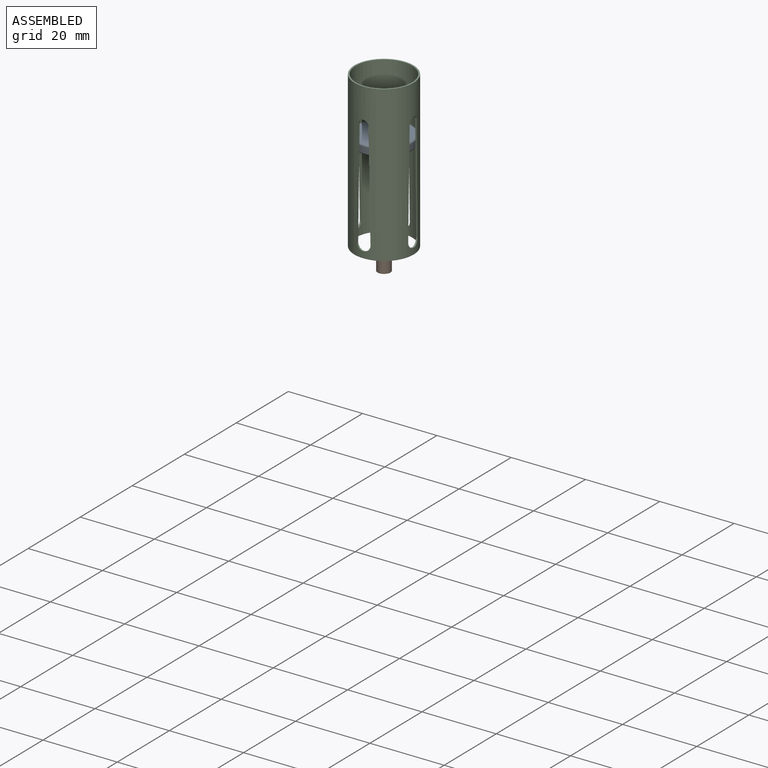
[diagram: assembled view]
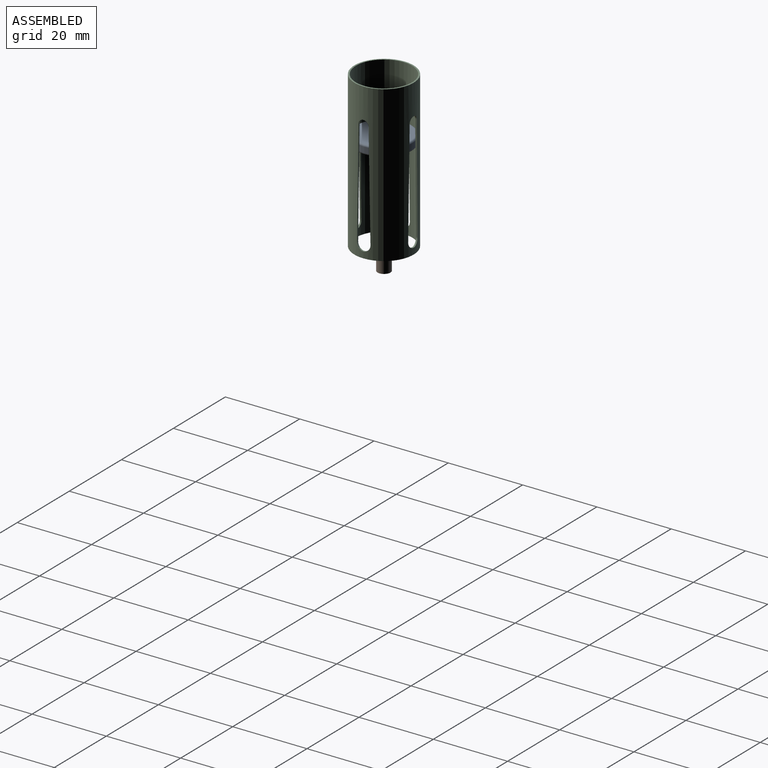
[diagram: assembled view, second angle]
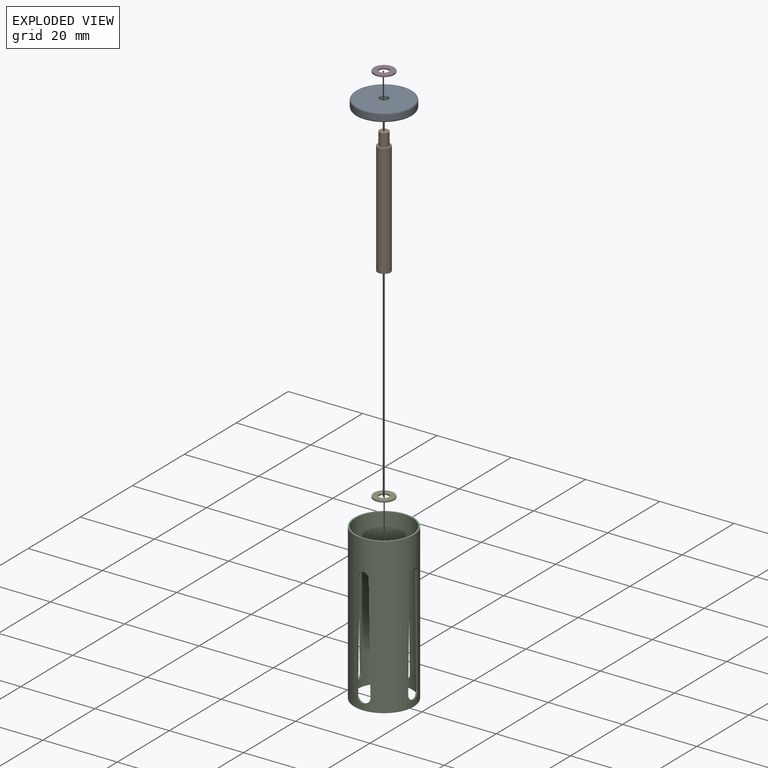
[diagram: exploded view]
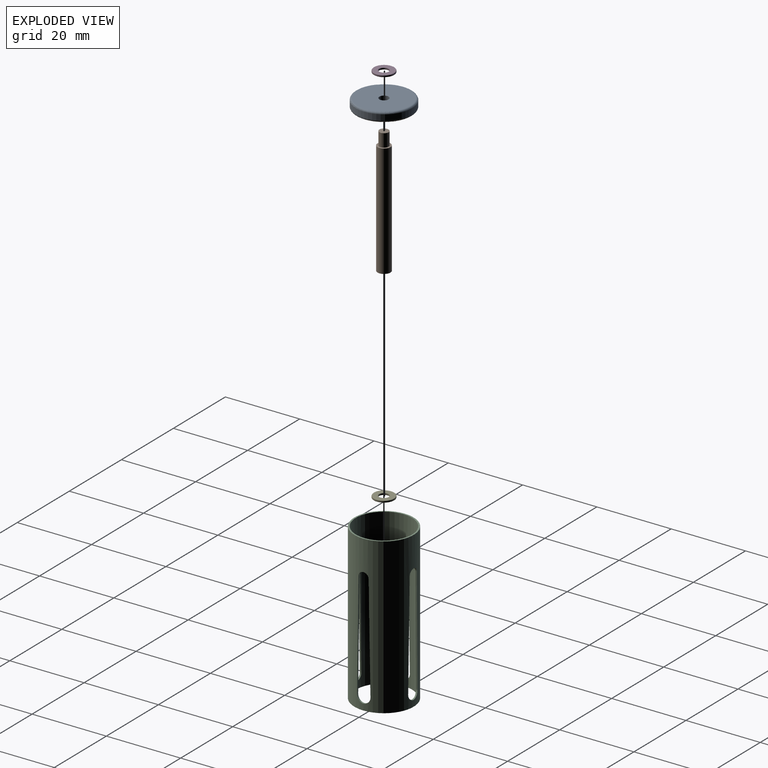
[diagram: exploded view, second angle]
ASSEMBLY  parts=5 mates=7
PART A: 6 faces, bbox 16.4x16.4x2.5 mm
  f0: cylinder r=7.56mm len=15.13mm, axis (0,0,-1), area 71.3mm2, adj f3,f4
  f1: plane 14.13x14.13mm, normal (0,0,1), area 151.9mm2, adj f4,f5
  f2: plane 14.13x14.13mm, normal (0,0,-1), area 151.9mm2, adj f3,f5
  f3: torus R=7.07mm, axis (0,0,1), area 36.4mm2, adj f0,f2
  f4: torus R=7.07mm, axis (0,0,1), area 36.4mm2, adj f0,f1
  f5: cylinder r=1.25mm len=2.5mm, axis (0,0,1), area 19.6mm2, adj f1,f2
PART B: 5 faces, bbox 3.5x3.5x34 mm
  f0: cylinder r=1.75mm len=30.5mm, axis (0,0,-1), area 335.4mm2, adj f1,f2
  f1: plane 3.5x3.5mm, normal (0,0,1), area 4.7mm2, adj f0,f3
  f2: plane 3.5x3.5mm, normal (0,0,-1), area 9.6mm2, adj f0
  f3: cylinder r=1.25mm len=3.5mm, axis (0,0,-1), area 27.5mm2, adj f1,f4
  f4: plane 2.5x2.5mm, normal (0,0,1), area 4.9mm2, adj f3
PART C: 20 faces, bbox 16x16x41.8 mm
  f0: cylinder r=7.97mm len=41.8mm, axis (0,0,-1), area 1697.2mm2, adj f2,f3,f4,f5,f6,f7,f8,f9
  f1: cylinder r=7.58mm len=41.8mm, axis (0,0,1), area 1591.9mm2, adj f2,f3,f4,f5,f6,f7,f8,f9
  f2: plane 15.95x15.95mm, normal (0,0,1), area 19.5mm2, adj f0,f1
  f3: plane 15.95x15.95mm, normal (0,0,-1), area 19.5mm2, adj f0,f1
  f4: cylinder r=1.8mm len=3.6mm, axis (0,1,0), area 2.3mm2, adj f0,f1,f5,f7
  f5: plane 28.79x0.5mm, normal (1,0,-0.02), area 11.8mm2, adj f0,f1,f4,f6
  f6: cylinder r=1.35mm len=2.7mm, axis (0,1,0), area 1.7mm2, adj f0,f1,f5,f7
  f7: plane 28.77x0.5mm, normal (-1,0,-0.02), area 11.8mm2, adj f0,f1,f4,f6
  f8: plane 28.77x0.5mm, normal (-1,0,-0.02), area 11.8mm2, adj f0,f1,f9,f11
  f9: cylinder r=1.35mm len=2.7mm, axis (0,1,0), area 1.7mm2, adj f0,f1,f8,f10
  f10: plane 28.79x0.5mm, normal (1,0,-0.02), area 11.8mm2, adj f0,f1,f9,f11
  f11: cylinder r=1.8mm len=3.6mm, axis (0,1,0), area 2.3mm2, adj f0,f1,f8,f10
  f12: plane 28.8x0.5mm, normal (0,1,-0.02), area 11.8mm2, adj f0,f1,f13,f15
  f13: cylinder r=1.35mm len=2.7mm, axis (1,0,0), area 1.7mm2, adj f0,f1,f12,f14
  f14: plane 28.8x0.5mm, normal (0,-1,-0.02), area 11.8mm2, adj f0,f1,f13,f15
  f15: cylinder r=1.8mm len=3.6mm, axis (1,0,0), area 2.3mm2, adj f0,f1,f12,f14
  f16: cylinder r=1.8mm len=3.6mm, axis (1,0,0), area 2.3mm2, adj f0,f1,f17,f19
  f17: plane 28.8x0.5mm, normal (0,-1,-0.02), area 11.8mm2, adj f0,f1,f16,f18
  f18: cylinder r=1.35mm len=2.7mm, axis (1,0,0), area 1.7mm2, adj f0,f1,f17,f19
  f19: plane 28.8x0.5mm, normal (0,1,-0.02), area 11.8mm2, adj f0,f1,f16,f18
PART D: 8 faces, bbox 6x6x0.5 mm
  f0: cylinder r=2.75mm len=5.5mm, axis (0,0,-1), area 5.2mm2, adj f6,f7
  f1: plane 5.3x5.3mm, normal (0,0,1), area 16.1mm2, adj f5,f7
  f2: plane 5.3x5.3mm, normal (0,0,-1), area 16.1mm2, adj f4,f6
  f3: cylinder r=1.28mm len=2.55mm, axis (0,0,-1), area 2.4mm2, adj f4,f5
  f4: torus R=1.38mm, axis (0,0,1), area 1.3mm2, adj f2,f3
  f5: torus R=1.38mm, axis (0,0,1), area 1.3mm2, adj f1,f3
  f6: torus R=2.65mm, axis (0,0,1), area 2.7mm2, adj f0,f2
  f7: torus R=2.65mm, axis (0,0,1), area 2.7mm2, adj f0,f1
PART E: same geometry as D
PLACE A t=(-10.01,-0.27,28.46)mm
PLACE B t=(-10.01,-0.27,-2.54)mm
PLACE C t=(-10.01,-0.27,3.49)mm
PLACE D t=(-10.01,-0.27,30.96)mm
PLACE E t=(-10.01,-0.27,27.96)mm
MATE fastened A.f0 <-> E.f0  axis (0,0,-1) through (-10.01,-0.27,28.46)mm
MATE cylindrical C.f1 <-> A.f0  axis (0,0,1) through (-10.01,-0.27,24.39)mm
MATE fastened D.f0 <-> A.f0  axis (0,0,-1) through (-10.01,-0.27,30.96)mm
MATE cylindrical A.f5 <-> B.f3  axis (0,0,1) through (-10.01,-0.27,30.96)mm
MATE fastened E.f0 <-> B.f0  axis (0,0,-1) through (-10.01,-0.27,27.96)mm
MATE cylindrical E.f3 <-> B.f0  axis (0,0,1) through (-10.01,-0.27,28.36)mm
MATE cylindrical D.f3 <-> B.f3  axis (0,0,1) through (-10.01,-0.27,31.06)mm
